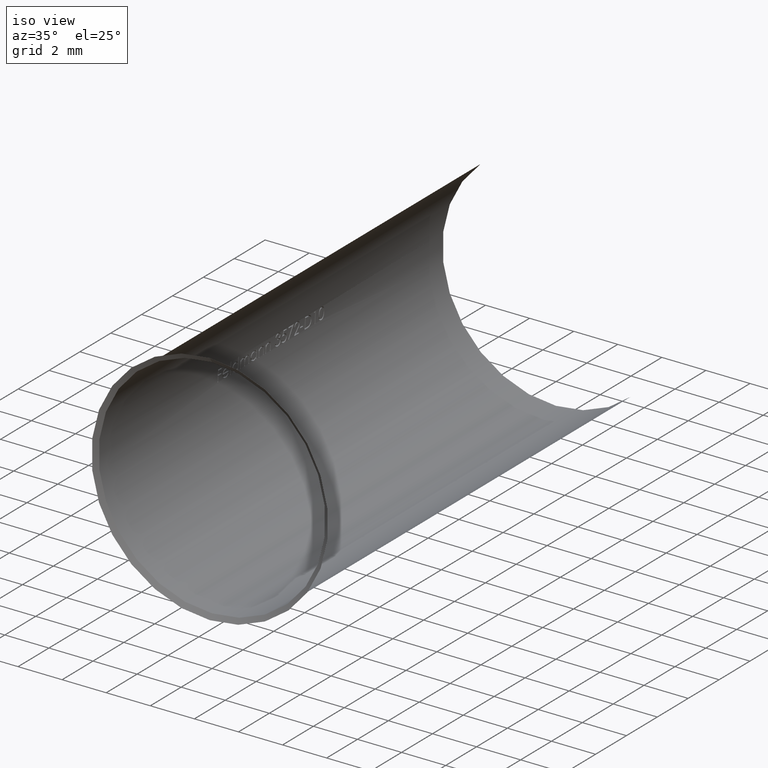
[diagram: clean part render]
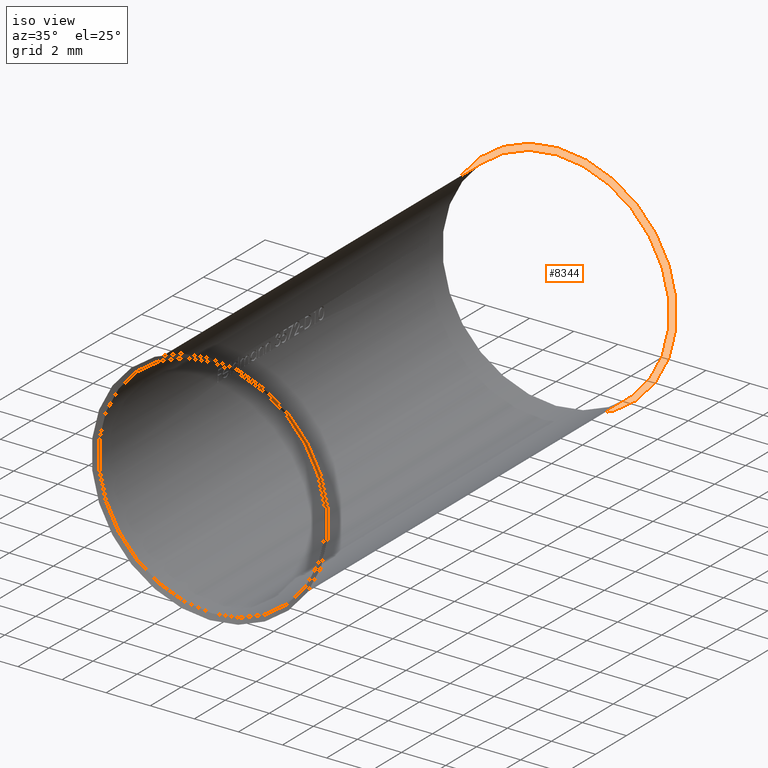
[diagram: same view with one face highlighted and labeled with its STEP entity id]
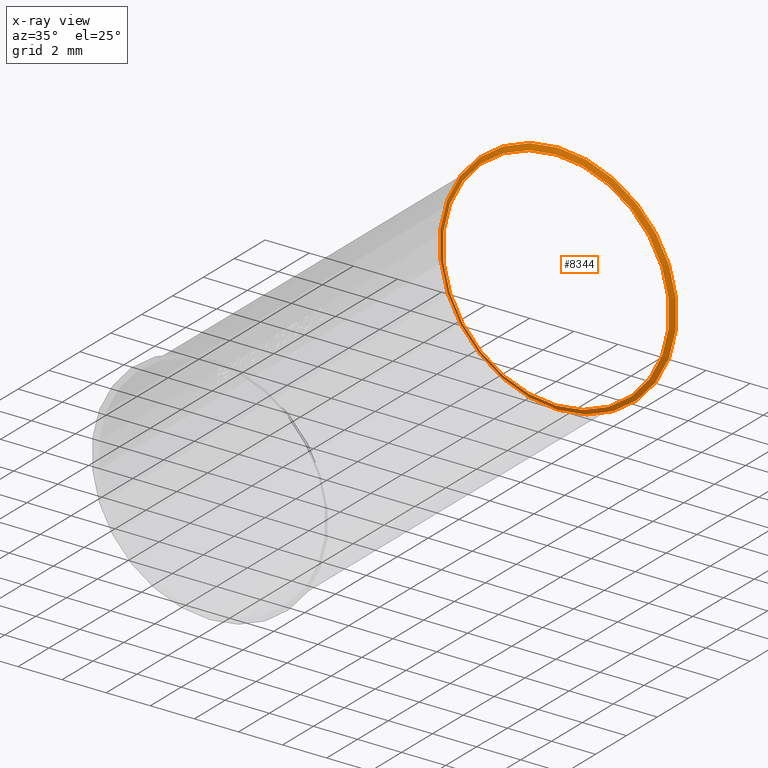
[diagram: x-ray of the same camera — body ghosted, the highlighted face saturated]
A machine part, iso view. The second image highlights one B-rep face of the part: STEP entity #8344.
The next image is the same camera in x-ray: the body ghosted, the highlighted face saturated — about 0% of this face is hidden behind the body in this view.
In plain terms, the highlighted conical surface has half-angle 57.165 deg.
Its self-contained STEP definition (entity closure, byte-faithful):
#338 = DIRECTION ( 'NONE',  ( 0.0000000000000000000, 0.0000000000000000000, -1.000000000000000000 ) ) ;
#744 = EDGE_CURVE ( 'NONE', #1417, #1417, #3899, .T. ) ;
#1417 = VERTEX_POINT ( 'NONE', #5521 ) ;
#1532 = VERTEX_POINT ( 'NONE', #2350 ) ;
#2350 = CARTESIAN_POINT ( 'NONE',  ( 0.0000000000000000000, 11.28520511712378900, -5.375327475088663900 ) ) ;
#3091 = AXIS2_PLACEMENT_3D ( 'NONE', #7985, #9485, #3155 ) ;
#3155 = DIRECTION ( 'NONE',  ( 0.0000000000000000000, 0.0000000000000000000, -1.000000000000000000 ) ) ;
#3461 = ORIENTED_EDGE ( 'NONE', *, *, #8620, .F. ) ;
#3899 = CIRCLE ( 'NONE', #3091, 5.150000000000001200 ) ;
#4272 = FACE_OUTER_BOUND ( 'NONE', #4288, .T. ) ;
#4288 = EDGE_LOOP ( 'NONE', ( #3461 ) ) ;
#5142 = DIRECTION ( 'NONE',  ( -0.0000000000000000000, -1.000000000000000000, -0.0000000000000000000 ) ) ;
#5521 = CARTESIAN_POINT ( 'NONE',  ( 1.836970198721029600E-015, 11.13979806669108400, -5.150000000000001200 ) ) ;
#5624 = CONICAL_SURFACE ( 'NONE', #8278, 5.150000000000001200, 0.9977221246720281400 ) ;
#6171 = DIRECTION ( 'NONE',  ( 0.0000000000000000000, 1.000000000000000000, 0.0000000000000000000 ) ) ;
#6610 = CIRCLE ( 'NONE', #9338, 5.375327475088663900 ) ;
#6645 = CARTESIAN_POINT ( 'NONE',  ( 0.0000000000000000000, 11.28520511712378900, 0.0000000000000000000 ) ) ;
#7826 = DIRECTION ( 'NONE',  ( 0.0000000000000000000, 0.0000000000000000000, 1.000000000000000000 ) ) ;
#7985 = CARTESIAN_POINT ( 'NONE',  ( 1.836970198721029600E-015, 11.13979806669108400, 0.0000000000000000000 ) ) ;
#8218 = EDGE_LOOP ( 'NONE', ( #9513 ) ) ;
#8278 = AXIS2_PLACEMENT_3D ( 'NONE', #10066, #6171, #7826 ) ;
#8344 = ADVANCED_FACE ( 'NONE', ( #4272, #8466 ), #5624, .F. ) ;
#8466 = FACE_BOUND ( 'NONE', #8218, .T. ) ;
#8620 = EDGE_CURVE ( 'NONE', #1532, #1532, #6610, .T. ) ;
#9338 = AXIS2_PLACEMENT_3D ( 'NONE', #6645, #5142, #338 ) ;
#9485 = DIRECTION ( 'NONE',  ( 0.0000000000000000000, 1.000000000000000000, 0.0000000000000000000 ) ) ;
#9513 = ORIENTED_EDGE ( 'NONE', *, *, #744, .F. ) ;
#10066 = CARTESIAN_POINT ( 'NONE',  ( 1.836970198721029600E-015, 11.13979806669108400, 0.0000000000000000000 ) ) ;